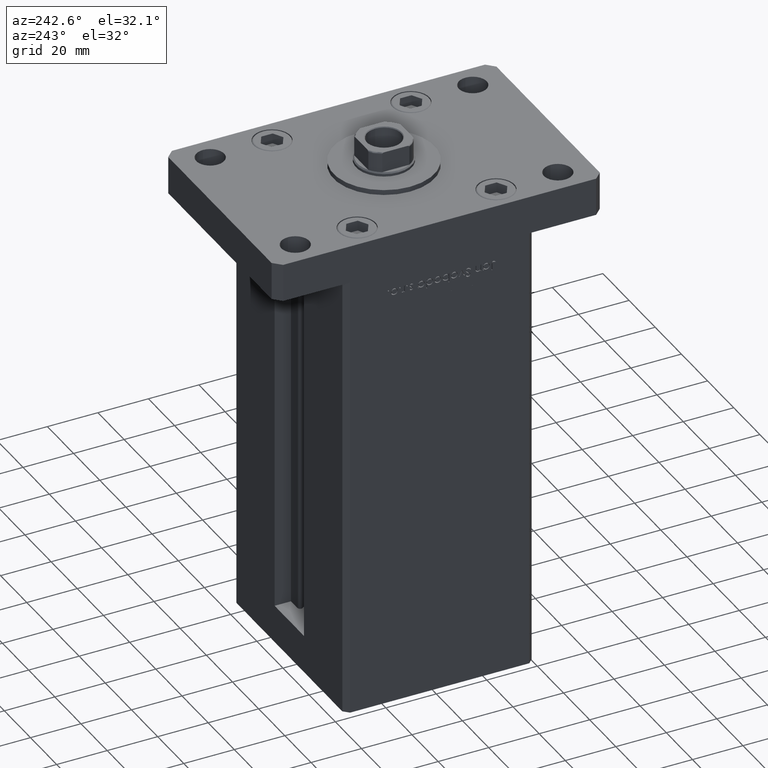
[diagram: clean part render]
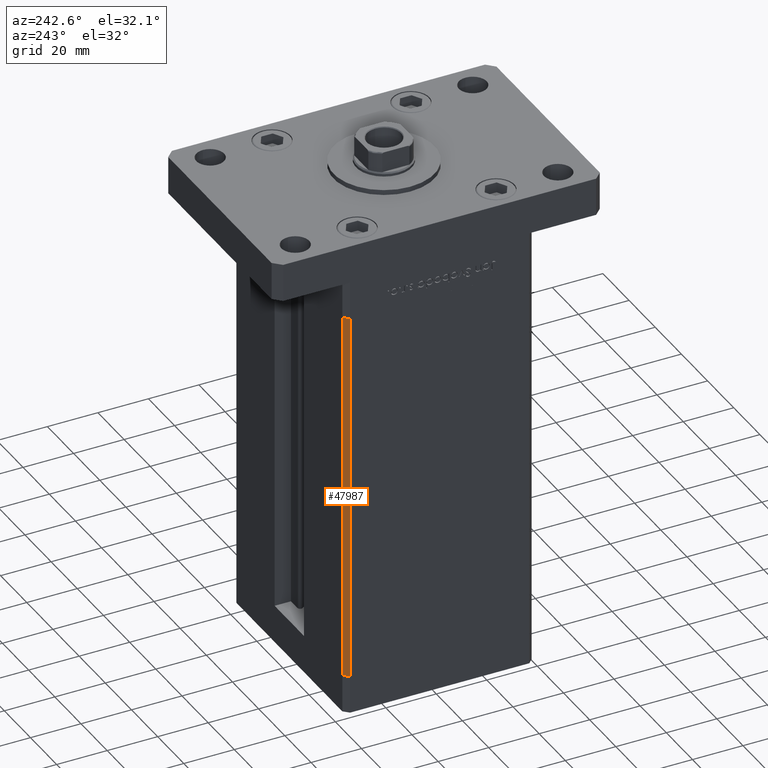
[diagram: same view with one face highlighted and labeled with its STEP entity id]
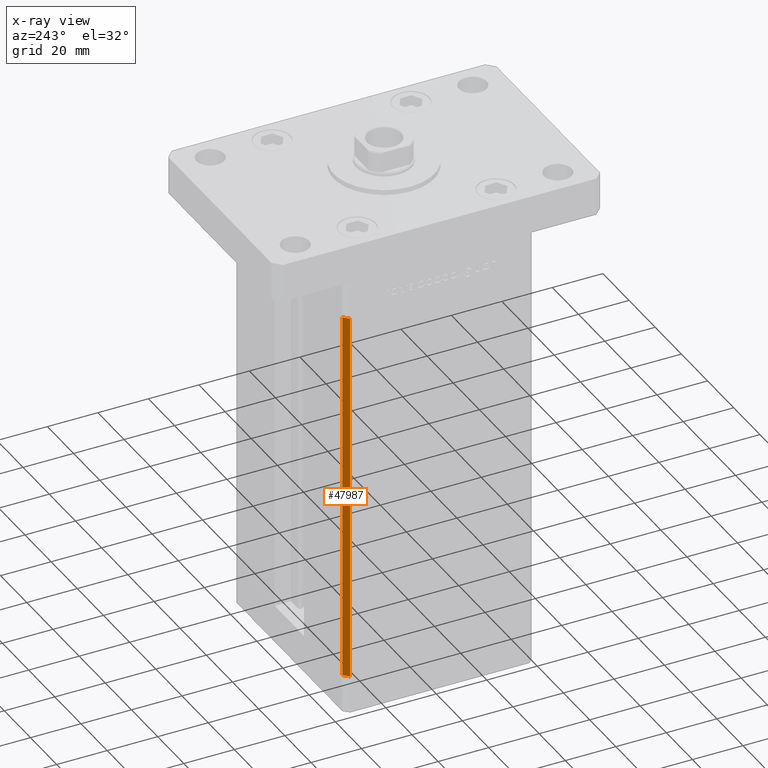
[diagram: x-ray of the same camera — body ghosted, the highlighted face saturated]
A machine part, auxiliary view. The second image highlights one B-rep face of the part: STEP entity #47987.
The next image is the same camera in x-ray: the body ghosted, the highlighted face saturated — about 0% of this face is hidden behind the body in this view.
In plain terms, the highlighted planar face has unit normal (0.7071, -0.7071, 0).
Its self-contained STEP definition (entity closure, byte-faithful):
#3802 = LINE ( 'NONE', #49054, #35928 ) ;
#5940 = CARTESIAN_POINT ( 'NONE',  ( -40.50000000000000000, 37.50000000000000711, 148.5000000000000000 ) ) ;
#6333 = PLANE ( 'NONE',  #27138 ) ;
#7829 = ORIENTED_EDGE ( 'NONE', *, *, #12227, .F. ) ;
#11630 = ORIENTED_EDGE ( 'NONE', *, *, #29112, .F. ) ;
#12227 = EDGE_CURVE ( 'NONE', #33474, #38726, #3802, .T. ) ;
#13274 = EDGE_CURVE ( 'NONE', #27929, #38726, #37187, .T. ) ;
#17297 = VERTEX_POINT ( 'NONE', #39164 ) ;
#20431 = CARTESIAN_POINT ( 'NONE',  ( -40.50000000000000000, 37.50000000000000711, 148.5000000000000000 ) ) ;
#23509 = LINE ( 'NONE', #5940, #32744 ) ;
#23759 = CARTESIAN_POINT ( 'NONE',  ( -42.50000000000000711, 35.50000000000001421, 148.5000000000000000 ) ) ;
#25255 = CARTESIAN_POINT ( 'NONE',  ( -40.50000000000000000, 37.50000000000000711, 0.000000000000000000 ) ) ;
#25648 = CARTESIAN_POINT ( 'NONE',  ( -42.50000000000000711, 35.50000000000001421, 0.000000000000000000 ) ) ;
#26122 = DIRECTION ( 'NONE',  ( 0.7071067811865451302, -0.7071067811865500152, 0.000000000000000000 ) ) ;
#26651 = DIRECTION ( 'NONE',  ( 0.7071067811865500152, 0.7071067811865451302, 0.000000000000000000 ) ) ;
#27049 = DIRECTION ( 'NONE',  ( -0.7071067811865500152, -0.7071067811865451302, 0.000000000000000000 ) ) ;
#27138 = AXIS2_PLACEMENT_3D ( 'NONE', #35572, #26122, #26651 ) ;
#27212 = ORIENTED_EDGE ( 'NONE', *, *, #31188, .T. ) ;
#27929 = VERTEX_POINT ( 'NONE', #28402 ) ;
#28402 = CARTESIAN_POINT ( 'NONE',  ( -40.50000000000000000, 37.50000000000000711, 0.000000000000000000 ) ) ;
#29112 = EDGE_CURVE ( 'NONE', #17297, #33474, #23509, .T. ) ;
#31188 = EDGE_CURVE ( 'NONE', #17297, #27929, #50239, .T. ) ;
#32744 = VECTOR ( 'NONE', #27049, 1000.000000000000114 ) ;
#32779 = ORIENTED_EDGE ( 'NONE', *, *, #13274, .T. ) ;
#33474 = VERTEX_POINT ( 'NONE', #23759 ) ;
#33668 = DIRECTION ( 'NONE',  ( -0.7071067811865500152, -0.7071067811865451302, 0.000000000000000000 ) ) ;
#35572 = CARTESIAN_POINT ( 'NONE',  ( -40.50000000000000000, 37.50000000000000711, 148.5000000000000000 ) ) ;
#35928 = VECTOR ( 'NONE', #44172, 1000.000000000000000 ) ;
#36957 = DIRECTION ( 'NONE',  ( -0.000000000000000000, -0.000000000000000000, -1.000000000000000000 ) ) ;
#37187 = LINE ( 'NONE', #25255, #39451 ) ;
#38726 = VERTEX_POINT ( 'NONE', #25648 ) ;
#39164 = CARTESIAN_POINT ( 'NONE',  ( -40.50000000000000000, 37.50000000000000711, 148.5000000000000000 ) ) ;
#39451 = VECTOR ( 'NONE', #33668, 1000.000000000000114 ) ;
#43443 = FACE_OUTER_BOUND ( 'NONE', #51747, .T. ) ;
#44172 = DIRECTION ( 'NONE',  ( -0.000000000000000000, -0.000000000000000000, -1.000000000000000000 ) ) ;
#47987 = ADVANCED_FACE ( 'NONE', ( #43443 ), #6333, .F. ) ;
#49054 = CARTESIAN_POINT ( 'NONE',  ( -42.50000000000000711, 35.50000000000001421, 148.5000000000000000 ) ) ;
#50239 = LINE ( 'NONE', #20431, #53593 ) ;
#51747 = EDGE_LOOP ( 'NONE', ( #32779, #7829, #11630, #27212 ) ) ;
#53593 = VECTOR ( 'NONE', #36957, 1000.000000000000000 ) ;